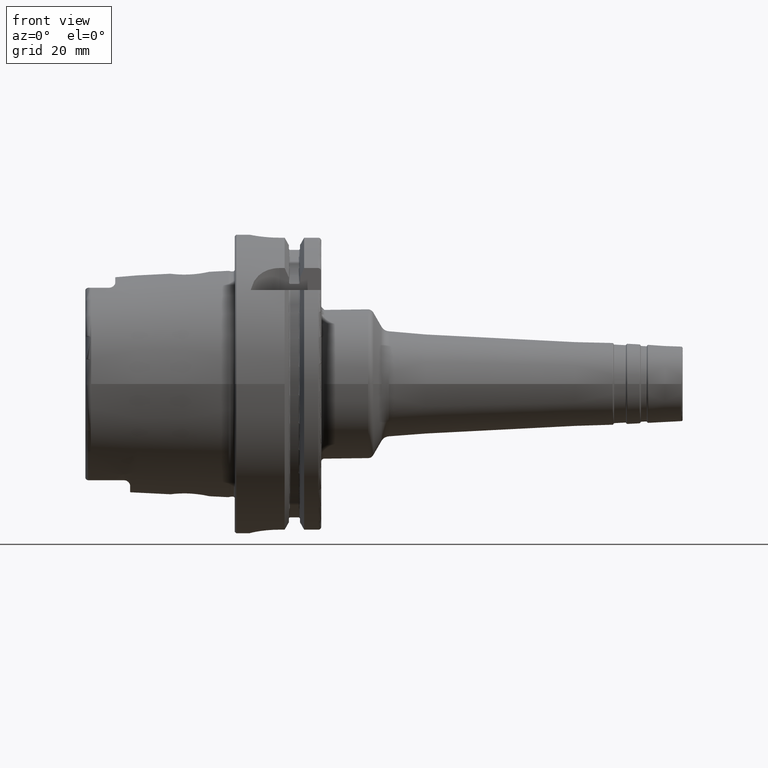
[diagram: clean part render]
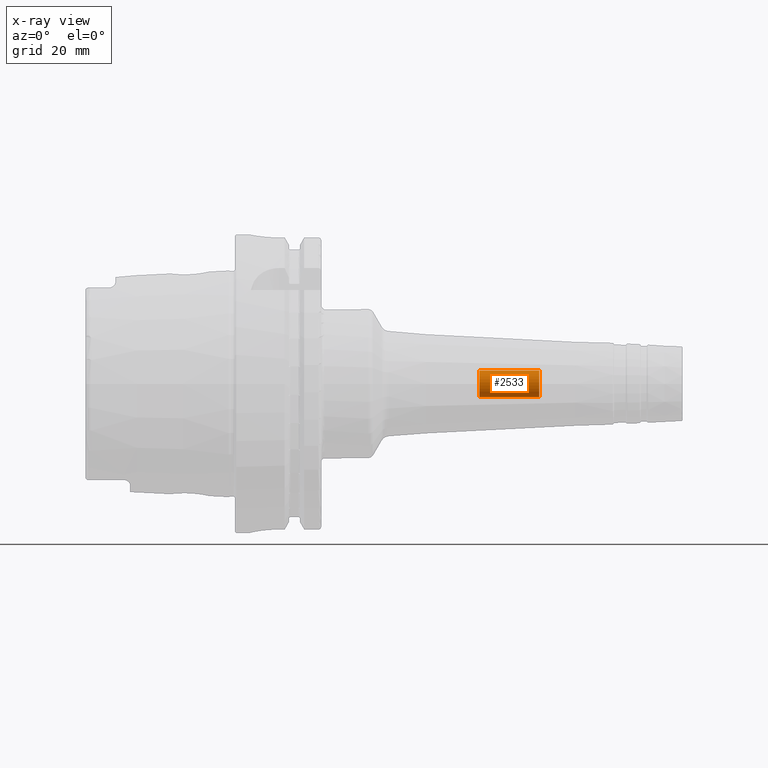
[diagram: x-ray — body ghosted, one internal face saturated and labeled with its STEP entity id]
A machine part, front view, then the same camera in x-ray: the body is ghosted and one INTERNAL B-rep face — a face not visible from any outside direction — is saturated and labeled: STEP entity #2533.
In plain terms, the highlighted cylindrical surface (bore or boss wall) has radius 4.4587 mm, axis along (1, 0, 0).
Its self-contained STEP definition (entity closure, byte-faithful):
#187=LINE('',#4108,#301);
#301=VECTOR('',#3293,4.458734);
#396=CYLINDRICAL_SURFACE('',#2779,4.458734);
#456=FACE_OUTER_BOUND('',#592,.T.);
#592=EDGE_LOOP('',(#1849,#1850,#1851,#1852,#1853,#1854));
#798=CIRCLE('',#2777,4.458734);
#799=CIRCLE('',#2778,4.458734);
#800=CIRCLE('',#2780,4.458734);
#801=CIRCLE('',#2781,4.458734);
#1020=VERTEX_POINT('',#4098);
#1021=VERTEX_POINT('',#4099);
#1022=VERTEX_POINT('',#4104);
#1023=VERTEX_POINT('',#4105);
#1333=EDGE_CURVE('',#1020,#1021,#798,.T.);
#1335=EDGE_CURVE('',#1021,#1020,#799,.T.);
#1336=EDGE_CURVE('',#1022,#1023,#800,.T.);
#1337=EDGE_CURVE('',#1023,#1022,#801,.T.);
#1338=EDGE_CURVE('',#1023,#1021,#187,.T.);
#1849=ORIENTED_EDGE('',*,*,#1336,.F.);
#1850=ORIENTED_EDGE('',*,*,#1337,.F.);
#1851=ORIENTED_EDGE('',*,*,#1338,.T.);
#1852=ORIENTED_EDGE('',*,*,#1333,.F.);
#1853=ORIENTED_EDGE('',*,*,#1335,.F.);
#1854=ORIENTED_EDGE('',*,*,#1338,.F.);
#2533=ADVANCED_FACE('',(#456),#396,.F.);
#2777=AXIS2_PLACEMENT_3D('',#4100,#3282,#3283);
#2778=AXIS2_PLACEMENT_3D('',#4102,#3285,#3286);
#2779=AXIS2_PLACEMENT_3D('',#4103,#3287,#3288);
#2780=AXIS2_PLACEMENT_3D('',#4106,#3289,#3290);
#2781=AXIS2_PLACEMENT_3D('',#4107,#3291,#3292);
#3282=DIRECTION('center_axis',(1.,0.,0.));
#3283=DIRECTION('ref_axis',(0.,0.,-1.));
#3285=DIRECTION('center_axis',(1.,0.,0.));
#3286=DIRECTION('ref_axis',(0.,0.,-1.));
#3287=DIRECTION('center_axis',(1.,0.,0.));
#3288=DIRECTION('ref_axis',(0.,0.,-1.));
#3289=DIRECTION('center_axis',(-1.,0.,0.));
#3290=DIRECTION('ref_axis',(0.,0.,-1.));
#3291=DIRECTION('center_axis',(-1.,0.,0.));
#3292=DIRECTION('ref_axis',(0.,0.,-1.));
#3293=DIRECTION('',(-1.,0.,0.));
#4098=CARTESIAN_POINT('',(82.,0.,-4.458734));
#4099=CARTESIAN_POINT('',(82.,-5.46037432134948E-16,4.458734));
#4100=CARTESIAN_POINT('Origin',(82.,0.,0.));
#4102=CARTESIAN_POINT('Origin',(82.,0.,0.));
#4103=CARTESIAN_POINT('Origin',(92.,0.,0.));
#4104=CARTESIAN_POINT('',(102.,0.,-4.458734));
#4105=CARTESIAN_POINT('',(102.,-5.46037432134947E-16,4.458734));
#4106=CARTESIAN_POINT('Origin',(102.,0.,0.));
#4107=CARTESIAN_POINT('Origin',(102.,0.,0.));
#4108=CARTESIAN_POINT('',(92.,-5.46037432134947E-16,4.458734));